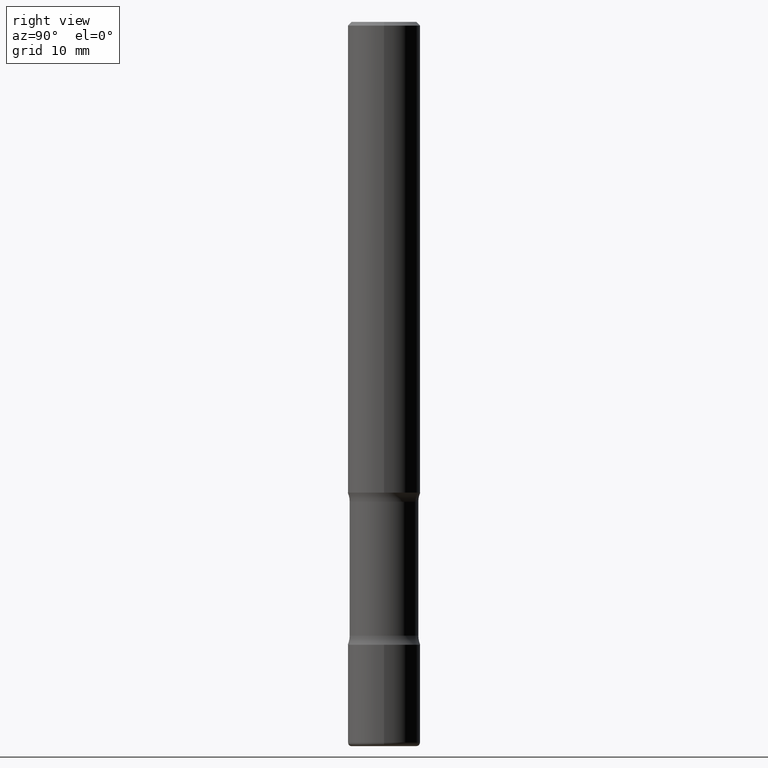
[diagram: clean part render]
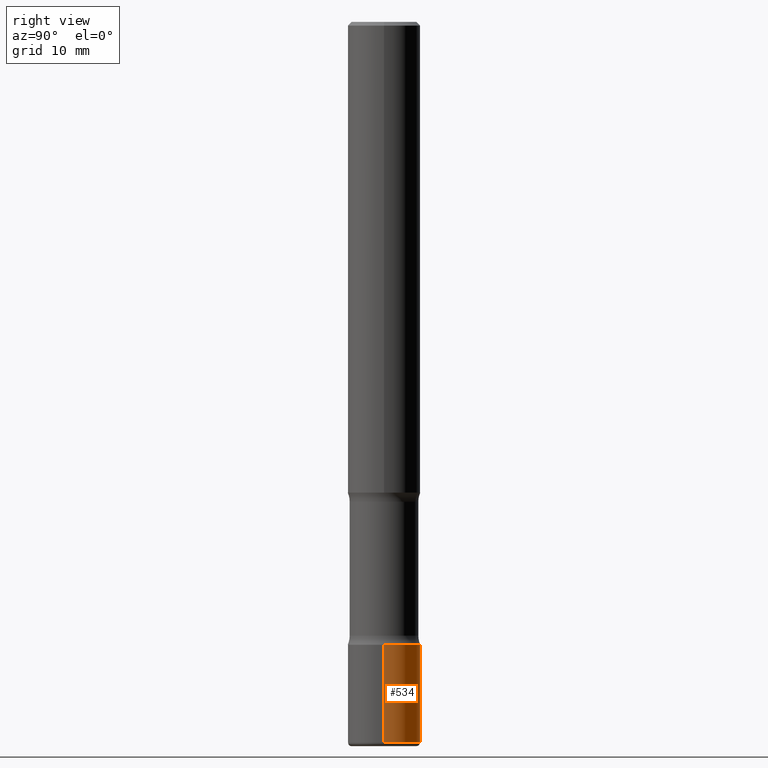
[diagram: same view with one face highlighted and labeled with its STEP entity id]
A machine part, right view. The second image highlights one B-rep face of the part: STEP entity #534.
In plain terms, the highlighted cylindrical surface (edge-blend (fillet) strip) has radius 5 mm, axis along (-0, 0, 1).
Its self-contained STEP definition (entity closure, byte-faithful):
#29 = ORIENTED_EDGE ( 'NONE', *, *, #188, .T. ) ;
#38 = EDGE_CURVE ( 'NONE', #288, #517, #43, .T. ) ;
#43 = LINE ( 'NONE', #175, #518 ) ;
#53 = DIRECTION ( 'NONE',  ( -2.445468806185136597E-29, 3.491481338843145583E-15, 1.000000000000000000 ) ) ;
#59 = DIRECTION ( 'NONE',  ( -2.445468806185136597E-29, 3.491481338843145583E-15, 1.000000000000000000 ) ) ;
#69 = ORIENTED_EDGE ( 'NONE', *, *, #92, .F. ) ;
#92 = EDGE_CURVE ( 'NONE', #523, #517, #395, .T. ) ;
#96 = DIRECTION ( 'NONE',  ( 1.000000000000000000, -6.982962677686266711E-15, 4.876176775795935793E-29 ) ) ;
#140 = AXIS2_PLACEMENT_3D ( 'NONE', #437, #59, #199 ) ;
#145 = DIRECTION ( 'NONE',  ( 1.000000000000000000, -6.982962677686265133E-15, 0.000000000000000000 ) ) ;
#149 = CARTESIAN_POINT ( 'NONE',  ( 0.000000000000000000, 0.000000000000000000, 0.000000000000000000 ) ) ;
#153 = CIRCLE ( 'NONE', #140, 0.1968500000000001915 ) ;
#158 = VERTEX_POINT ( 'NONE', #402 ) ;
#173 = FACE_OUTER_BOUND ( 'NONE', #544, .T. ) ;
#175 = CARTESIAN_POINT ( 'NONE',  ( -0.1968500000000001360, 1.398703375343758182E-15, -9.682923725166790684E-30 ) ) ;
#188 = EDGE_CURVE ( 'NONE', #158, #288, #153, .T. ) ;
#199 = DIRECTION ( 'NONE',  ( 1.000000000000000000, -6.982962677686272233E-15, 0.000000000000000000 ) ) ;
#214 = CARTESIAN_POINT ( 'NONE',  ( 8.279868283981634472E-29, -1.182145751705512057E-14, -3.385799999999999699 ) ) ;
#221 = DIRECTION ( 'NONE',  ( -2.445468806185136877E-29, 3.491481338843145188E-15, 1.000000000000000000 ) ) ;
#227 = VECTOR ( 'NONE', #480, 39.37007874015748143 ) ;
#250 = EDGE_CURVE ( 'NONE', #158, #523, #550, .T. ) ;
#260 = CARTESIAN_POINT ( 'NONE',  ( 0.1968500000000001082, -1.319605372015766376E-14, -3.385799999999999699 ) ) ;
#268 = AXIS2_PLACEMENT_3D ( 'NONE', #214, #53, #145 ) ;
#272 = ORIENTED_EDGE ( 'NONE', *, *, #38, .T. ) ;
#278 = AXIS2_PLACEMENT_3D ( 'NONE', #149, #465, #96 ) ;
#288 = VERTEX_POINT ( 'NONE', #341 ) ;
#315 = CARTESIAN_POINT ( 'NONE',  ( 0.1968500000000001360, -1.374596203102542594E-15, 9.598753983154306463E-30 ) ) ;
#341 = CARTESIAN_POINT ( 'NONE',  ( -0.1968500000000001082, -1.227847647330649839E-14, -3.917300000000000448 ) ) ;
#395 = CIRCLE ( 'NONE', #268, 0.1968500000000001082 ) ;
#402 = CARTESIAN_POINT ( 'NONE',  ( 0.1968500000000001082, -1.505177605175279857E-14, -3.917300000000000448 ) ) ;
#437 = CARTESIAN_POINT ( 'NONE',  ( 9.579634954469036932E-29, -1.367717984865025539E-14, -3.917300000000000448 ) ) ;
#465 = DIRECTION ( 'NONE',  ( -2.445468806185136597E-29, 3.491481338843145583E-15, 1.000000000000000000 ) ) ;
#480 = DIRECTION ( 'NONE',  ( -2.445468806185136877E-29, 3.491481338843145188E-15, 1.000000000000000000 ) ) ;
#502 = ORIENTED_EDGE ( 'NONE', *, *, #250, .F. ) ;
#517 = VERTEX_POINT ( 'NONE', #555 ) ;
#518 = VECTOR ( 'NONE', #221, 39.37007874015748143 ) ;
#522 = CYLINDRICAL_SURFACE ( 'NONE', #278, 0.1968500000000001360 ) ;
#523 = VERTEX_POINT ( 'NONE', #260 ) ;
#534 = ADVANCED_FACE ( 'NONE', ( #173 ), #522, .T. ) ;
#544 = EDGE_LOOP ( 'NONE', ( #29, #272, #69, #502 ) ) ;
#550 = LINE ( 'NONE', #315, #227 ) ;
#555 = CARTESIAN_POINT ( 'NONE',  ( -0.1968500000000001082, -1.135061530750893177E-14, -3.385799999999999699 ) ) ;